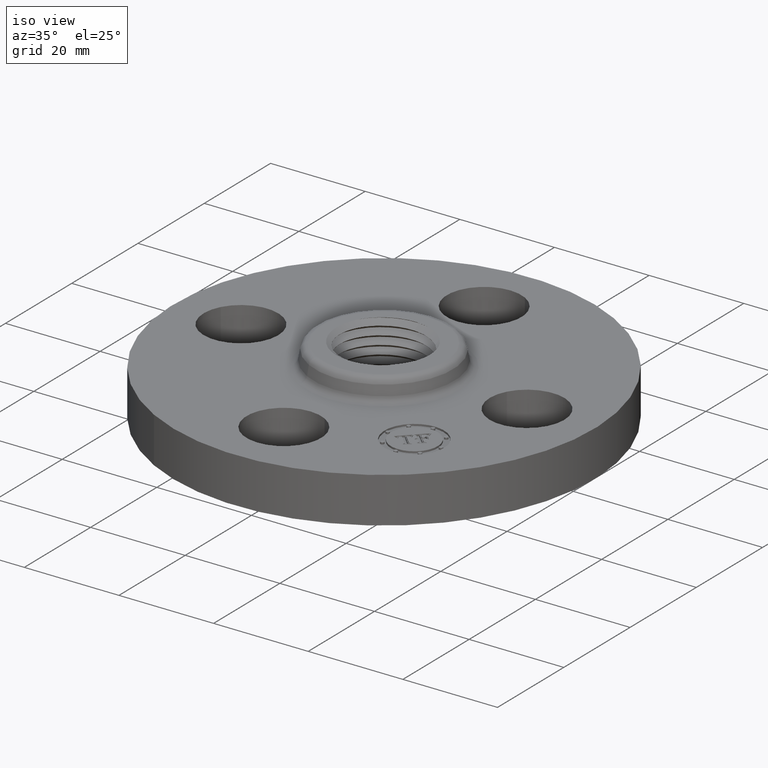
[diagram: clean part render]
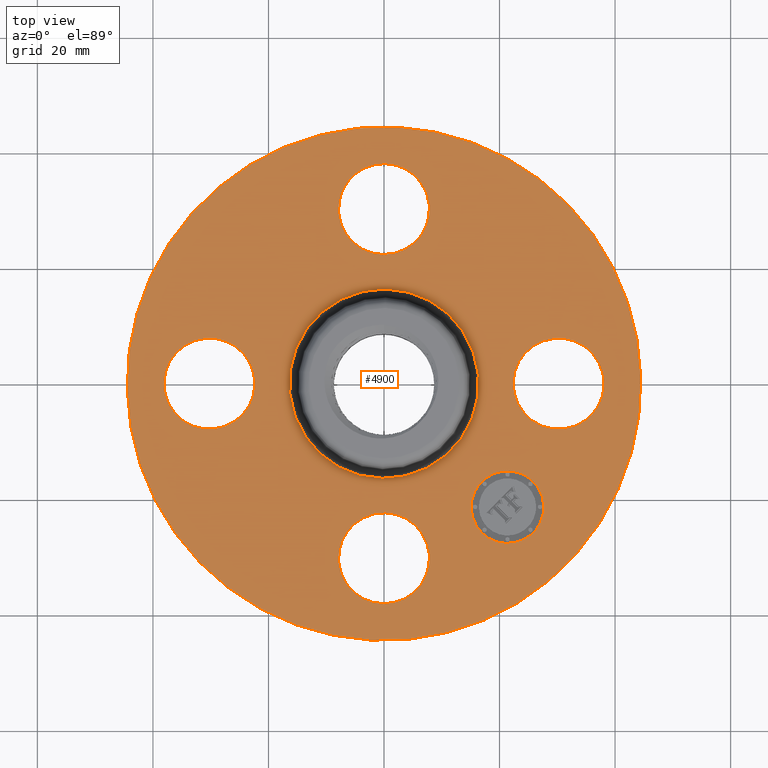
[diagram: tour spotlight — one face highlighted and labeled with its STEP entity id]
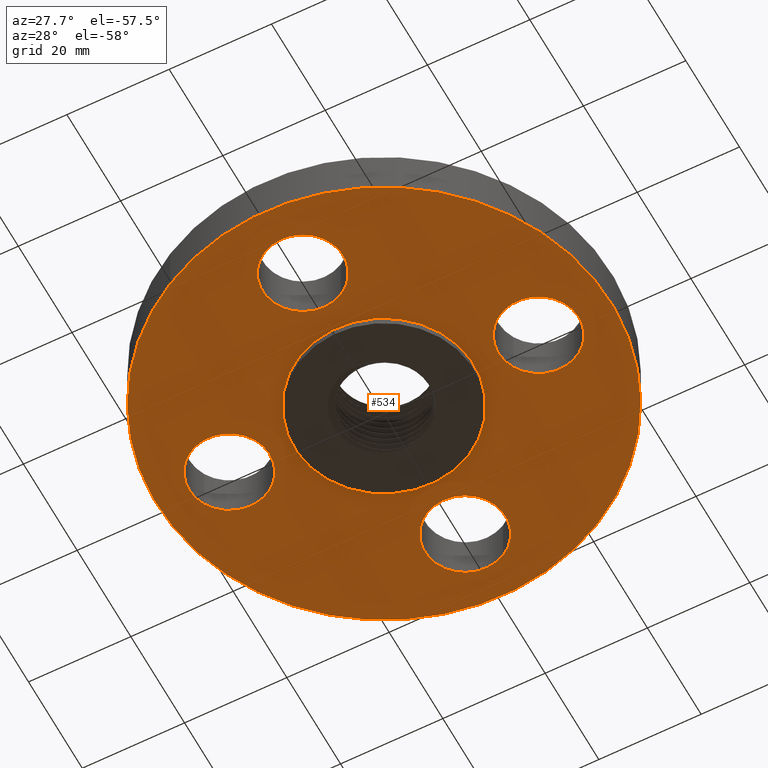
[diagram: tour spotlight — one face highlighted and labeled with its STEP entity id]
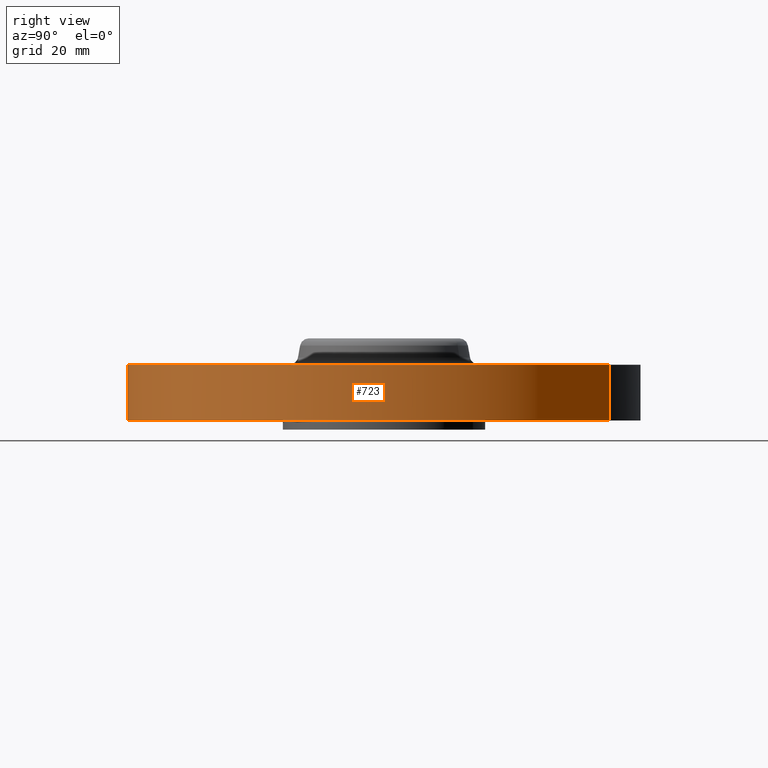
[diagram: tour spotlight — one face highlighted and labeled with its STEP entity id]
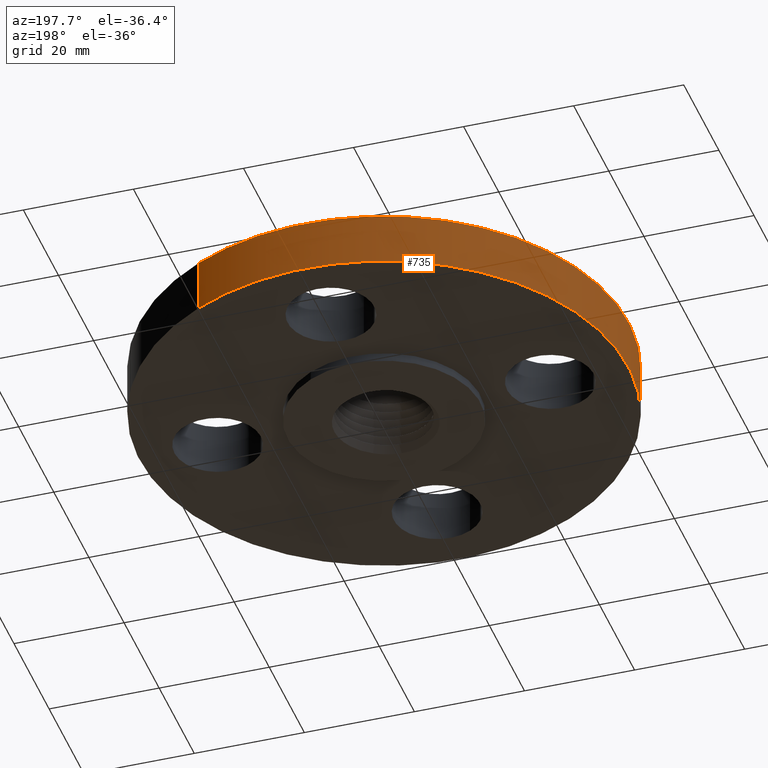
[diagram: tour spotlight — one face highlighted and labeled with its STEP entity id]
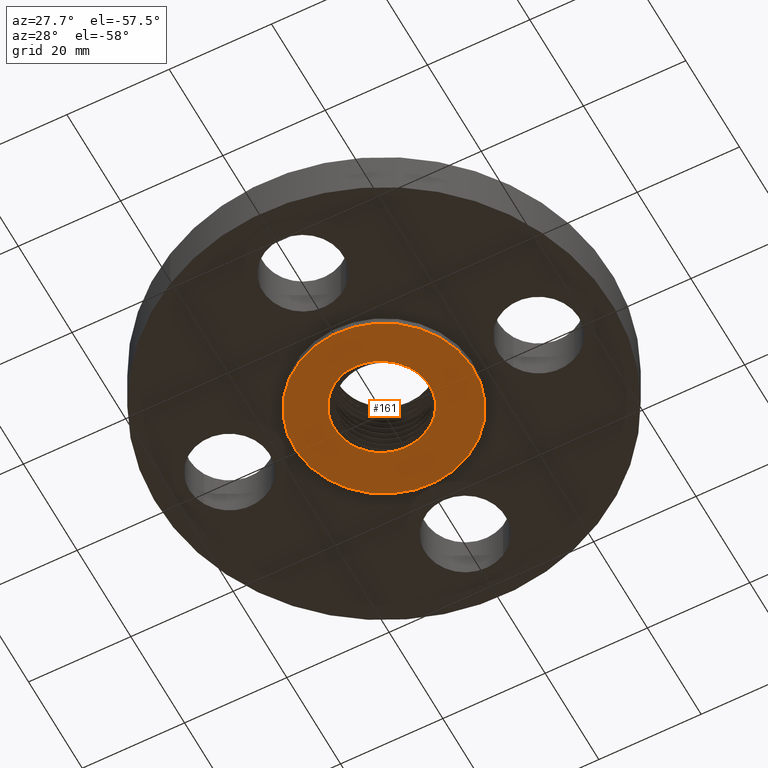
[diagram: tour spotlight — one face highlighted and labeled with its STEP entity id]
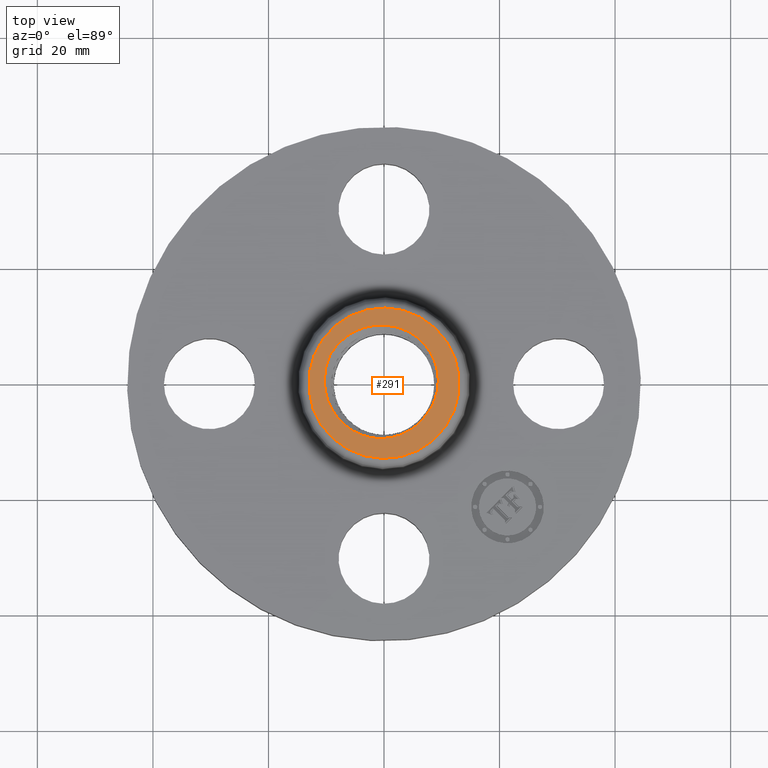
[diagram: tour spotlight — one face highlighted and labeled with its STEP entity id]
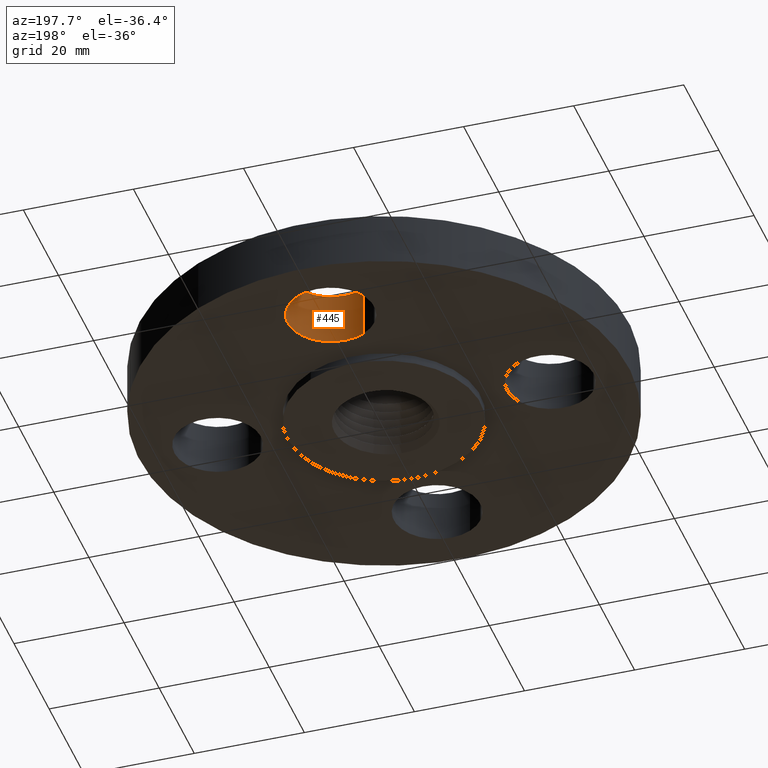
[diagram: tour spotlight — one face highlighted and labeled with its STEP entity id]
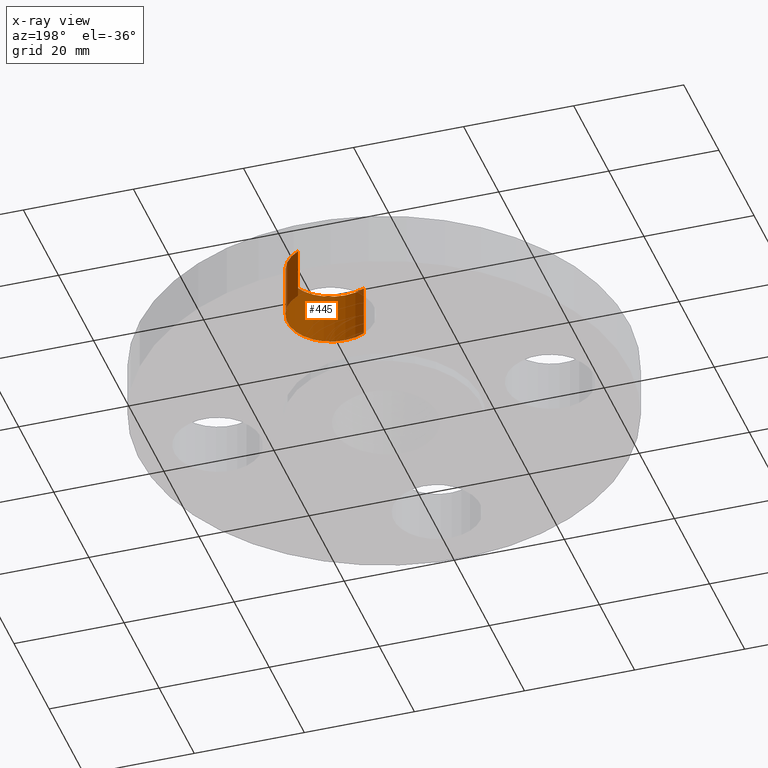
[diagram: x-ray of the same camera — body ghosted, this tour face saturated]
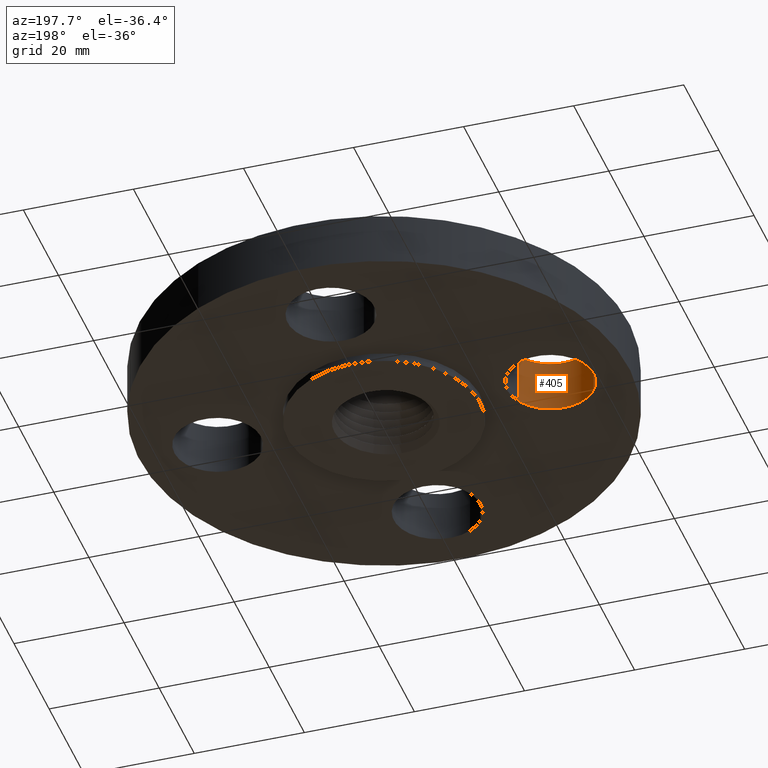
[diagram: tour spotlight — one face highlighted and labeled with its STEP entity id]
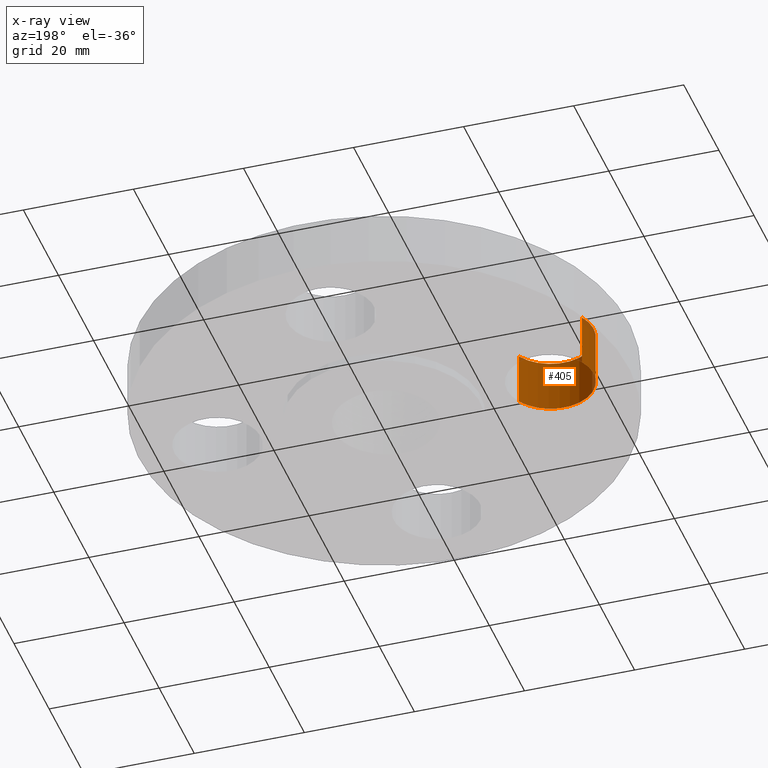
[diagram: x-ray of the same camera — body ghosted, this tour face saturated]
A machine part: a face-by-face anatomy tour. The part has 504 B-rep faces; the first image is the clean iso view, then the 8 largest visible faces are spotlighted one at a time (largest first), each with its STEP entity span.

Face 1 — top view, entity #4900. In plain terms, the highlighted planar face has unit normal (0, 0, -1).
Definition (entity closure, byte-faithful):
#322=AXIS2_PLACEMENT_3D('Circle Axis2P3D',#320,#321,$) ;
#339=AXIS2_PLACEMENT_3D('Circle Axis2P3D',#337,#338,$) ;
#379=AXIS2_PLACEMENT_3D('Circle Axis2P3D',#377,#378,$) ;
#396=AXIS2_PLACEMENT_3D('Circle Axis2P3D',#394,#395,$) ;
#436=AXIS2_PLACEMENT_3D('Circle Axis2P3D',#434,#435,$) ;
#453=AXIS2_PLACEMENT_3D('Circle Axis2P3D',#451,#452,$) ;
#657=AXIS2_PLACEMENT_3D('Circle Axis2P3D',#655,#656,$) ;
#683=AXIS2_PLACEMENT_3D('Circle Axis2P3D',#681,#682,$) ;
#707=AXIS2_PLACEMENT_3D('Circle Axis2P3D',#705,#706,$) ;
#726=AXIS2_PLACEMENT_3D('Circle Axis2P3D',#724,#725,$) ;
#757=AXIS2_PLACEMENT_3D('Circle Axis2P3D',#755,#756,$) ;
#769=AXIS2_PLACEMENT_3D('Circle Axis2P3D',#767,#768,$) ;
#4856=AXIS2_PLACEMENT_3D('Plane Axis2P3D',#4853,#4854,#4855) ;
#4884=AXIS2_PLACEMENT_3D('Circle Axis2P3D',#4882,#4883,$) ;
#4893=AXIS2_PLACEMENT_3D('Circle Axis2P3D',#4891,#4892,$) ;
#303=CARTESIAN_POINT('Vertex',(-0.148621916968,-1.46205059419,0.380000000002)) ;
#317=CARTESIAN_POINT('Vertex',(0.148621916968,-0.917949405818,0.380000000002)) ;
#320=CARTESIAN_POINT('Axis2P3D Location',(-6.70041327261E-017,-1.19,0.380000000002)) ;
#337=CARTESIAN_POINT('Axis2P3D Location',(-6.70041327261E-017,-1.19,0.380000000002)) ;
#360=CARTESIAN_POINT('Vertex',(-1.46205059419,0.148621916968,0.380000000002)) ;
#374=CARTESIAN_POINT('Vertex',(-0.917949405818,-0.148621916968,0.380000000002)) ;
#377=CARTESIAN_POINT('Axis2P3D Location',(-1.19,-1.45732969099E-016,0.380000000002)) ;
#394=CARTESIAN_POINT('Axis2P3D Location',(-1.19,-1.45732969099E-016,0.380000000002)) ;
#417=CARTESIAN_POINT('Vertex',(0.148621916968,1.46205059419,0.380000000002)) ;
#431=CARTESIAN_POINT('Vertex',(-0.148621916968,0.917949405818,0.380000000002)) ;
#434=CARTESIAN_POINT('Axis2P3D Location',(-7.87288363731E-017,1.19,0.380000000002)) ;
#451=CARTESIAN_POINT('Axis2P3D Location',(-7.87288363731E-017,1.19,0.380000000002)) ;
#655=CARTESIAN_POINT('Axis2P3D Location',(0.,0.,0.380000000002)) ;
#659=CARTESIAN_POINT('Vertex',(-0.309395343028,-0.566344376568,0.380000000002)) ;
#661=CARTESIAN_POINT('Vertex',(0.309395343028,0.566344376568,0.380000000002)) ;
#681=CARTESIAN_POINT('Axis2P3D Location',(0.,0.,0.380000000002)) ;
#702=CARTESIAN_POINT('Vertex',(0.838994692561,1.53576948331,0.380000000002)) ;
#705=CARTESIAN_POINT('Axis2P3D Location',(0.,0.,0.380000000002)) ;
#709=CARTESIAN_POINT('Vertex',(-0.838994692561,-1.53576948331,0.380000000002)) ;
#724=CARTESIAN_POINT('Axis2P3D Location',(0.,0.,0.380000000002)) ;
#745=CARTESIAN_POINT('Vertex',(1.46205059419,-0.148621916968,0.380000000002)) ;
#752=CARTESIAN_POINT('Vertex',(0.917949405818,0.148621916968,0.380000000002)) ;
#755=CARTESIAN_POINT('Axis2P3D Location',(1.19,0.,0.380000000002)) ;
#767=CARTESIAN_POINT('Axis2P3D Location',(1.19,0.,0.380000000002)) ;
#4853=CARTESIAN_POINT('Axis2P3D Location',(0.,1.75000000001,0.380000000002)) ;
#4882=CARTESIAN_POINT('Axis2P3D Location',(0.841457069615,-0.841457069615,0.380000000002)) ;
#4886=CARTESIAN_POINT('Vertex',(1.01646599796,-0.666448141271,0.380000000002)) ;
#4888=CARTESIAN_POINT('Vertex',(0.666448141271,-1.01646599796,0.380000000002)) ;
#4891=CARTESIAN_POINT('Axis2P3D Location',(0.841457069615,-0.841457069615,0.380000000002)) ;
#321=DIRECTION('Axis2P3D Direction',(0.,-0.,-0.0393700787402)) ;
#338=DIRECTION('Axis2P3D Direction',(0.,-0.,-0.0393700787402)) ;
#378=DIRECTION('Axis2P3D Direction',(-0.,0.,-0.0393700787402)) ;
#395=DIRECTION('Axis2P3D Direction',(-0.,0.,-0.0393700787402)) ;
#435=DIRECTION('Axis2P3D Direction',(0.,0.,-0.0393700787402)) ;
#452=DIRECTION('Axis2P3D Direction',(0.,0.,-0.0393700787402)) ;
#656=DIRECTION('Axis2P3D Direction',(0.,0.,-0.0393700787402)) ;
#682=DIRECTION('Axis2P3D Direction',(0.,0.,-0.0393700787402)) ;
#706=DIRECTION('Axis2P3D Direction',(0.,0.,-0.0393700787402)) ;
#725=DIRECTION('Axis2P3D Direction',(0.,0.,-0.0393700787402)) ;
#756=DIRECTION('Axis2P3D Direction',(0.,-0.,-0.0393700787402)) ;
#768=DIRECTION('Axis2P3D Direction',(0.,-0.,-0.0393700787402)) ;
#4854=DIRECTION('Axis2P3D Direction',(0.,0.,-0.0393700787402)) ;
#4855=DIRECTION('Axis2P3D XDirection',(0.0393700787402,0.,0.)) ;
#4883=DIRECTION('Axis2P3D Direction',(0.,0.,-0.0393700787402)) ;
#4892=DIRECTION('Axis2P3D Direction',(0.,0.,-0.0393700787402)) ;
#4859=ORIENTED_EDGE('',*,*,#711,.F.) ;
#4860=ORIENTED_EDGE('',*,*,#728,.F.) ;
#4863=ORIENTED_EDGE('',*,*,#771,.T.) ;
#4864=ORIENTED_EDGE('',*,*,#759,.T.) ;
#4867=ORIENTED_EDGE('',*,*,#663,.T.) ;
#4868=ORIENTED_EDGE('',*,*,#685,.T.) ;
#4871=ORIENTED_EDGE('',*,*,#324,.T.) ;
#4872=ORIENTED_EDGE('',*,*,#341,.T.) ;
#4875=ORIENTED_EDGE('',*,*,#381,.T.) ;
#4876=ORIENTED_EDGE('',*,*,#398,.T.) ;
#4879=ORIENTED_EDGE('',*,*,#438,.T.) ;
#4880=ORIENTED_EDGE('',*,*,#455,.T.) ;
#4897=ORIENTED_EDGE('',*,*,#4890,.T.) ;
#4898=ORIENTED_EDGE('',*,*,#4895,.T.) ;
#4865=FACE_BOUND('',#4862,.T.) ;
#4869=FACE_BOUND('',#4866,.T.) ;
#4873=FACE_BOUND('',#4870,.T.) ;
#4877=FACE_BOUND('',#4874,.T.) ;
#4881=FACE_BOUND('',#4878,.T.) ;
#4899=FACE_BOUND('',#4896,.T.) ;
#4900=ADVANCED_FACE('PartBody',(#4861,#4865,#4869,#4873,#4877,#4881,#4899),#4857,.F.) ;
#323=CIRCLE('generated circle',#322,0.310000000001) ;
#340=CIRCLE('generated circle',#339,0.310000000001) ;
#380=CIRCLE('generated circle',#379,0.310000000001) ;
#397=CIRCLE('generated circle',#396,0.310000000001) ;
#437=CIRCLE('generated circle',#436,0.310000000001) ;
#454=CIRCLE('generated circle',#453,0.310000000001) ;
#658=CIRCLE('generated circle',#657,0.645345977873) ;
#684=CIRCLE('generated circle',#683,0.645345977873) ;
#708=CIRCLE('generated circle',#707,1.75000000001) ;
#727=CIRCLE('generated circle',#726,1.75000000001) ;
#758=CIRCLE('generated circle',#757,0.310000000001) ;
#770=CIRCLE('generated circle',#769,0.310000000001) ;
#4885=CIRCLE('generated circle',#4884,0.247500000001) ;
#4894=CIRCLE('generated circle',#4893,0.247500000001) ;
#324=EDGE_CURVE('',#304,#318,#323,.T.) ;
#341=EDGE_CURVE('',#318,#304,#340,.T.) ;
#381=EDGE_CURVE('',#361,#375,#380,.T.) ;
#398=EDGE_CURVE('',#375,#361,#397,.T.) ;
#438=EDGE_CURVE('',#418,#432,#437,.T.) ;
#455=EDGE_CURVE('',#432,#418,#454,.T.) ;
#663=EDGE_CURVE('',#660,#662,#658,.T.) ;
#685=EDGE_CURVE('',#662,#660,#684,.T.) ;
#711=EDGE_CURVE('',#703,#710,#708,.T.) ;
#728=EDGE_CURVE('',#710,#703,#727,.T.) ;
#759=EDGE_CURVE('',#746,#753,#758,.T.) ;
#771=EDGE_CURVE('',#753,#746,#770,.T.) ;
#4890=EDGE_CURVE('',#4887,#4889,#4885,.T.) ;
#4895=EDGE_CURVE('',#4889,#4887,#4894,.T.) ;
#4858=EDGE_LOOP('',(#4859,#4860)) ;
#4862=EDGE_LOOP('',(#4863,#4864)) ;
#4866=EDGE_LOOP('',(#4867,#4868)) ;
#4870=EDGE_LOOP('',(#4871,#4872)) ;
#4874=EDGE_LOOP('',(#4875,#4876)) ;
#4878=EDGE_LOOP('',(#4879,#4880)) ;
#4896=EDGE_LOOP('',(#4897,#4898)) ;
#4861=FACE_OUTER_BOUND('',#4858,.T.) ;
#4857=PLANE('',#4856) ;
#304=VERTEX_POINT('',#303) ;
#318=VERTEX_POINT('',#317) ;
#361=VERTEX_POINT('',#360) ;
#375=VERTEX_POINT('',#374) ;
#418=VERTEX_POINT('',#417) ;
#432=VERTEX_POINT('',#431) ;
#660=VERTEX_POINT('',#659) ;
#662=VERTEX_POINT('',#661) ;
#703=VERTEX_POINT('',#702) ;
#710=VERTEX_POINT('',#709) ;
#746=VERTEX_POINT('',#745) ;
#753=VERTEX_POINT('',#752) ;
#4887=VERTEX_POINT('',#4886) ;
#4889=VERTEX_POINT('',#4888) ;

Face 2 — auxiliary view, entity #534. In plain terms, the highlighted planar face has unit normal (0, 0, -1).
Definition (entity closure, byte-faithful):
#308=AXIS2_PLACEMENT_3D('Circle Axis2P3D',#306,#307,$) ;
#334=AXIS2_PLACEMENT_3D('Circle Axis2P3D',#332,#333,$) ;
#365=AXIS2_PLACEMENT_3D('Circle Axis2P3D',#363,#364,$) ;
#391=AXIS2_PLACEMENT_3D('Circle Axis2P3D',#389,#390,$) ;
#422=AXIS2_PLACEMENT_3D('Circle Axis2P3D',#420,#421,$) ;
#448=AXIS2_PLACEMENT_3D('Circle Axis2P3D',#446,#447,$) ;
#466=AXIS2_PLACEMENT_3D('Plane Axis2P3D',#463,#464,#465) ;
#470=AXIS2_PLACEMENT_3D('Circle Axis2P3D',#468,#469,$) ;
#479=AXIS2_PLACEMENT_3D('Circle Axis2P3D',#477,#478,$) ;
#488=AXIS2_PLACEMENT_3D('Circle Axis2P3D',#486,#487,$) ;
#497=AXIS2_PLACEMENT_3D('Circle Axis2P3D',#495,#496,$) ;
#506=AXIS2_PLACEMENT_3D('Circle Axis2P3D',#504,#505,$) ;
#515=AXIS2_PLACEMENT_3D('Circle Axis2P3D',#513,#514,$) ;
#301=CARTESIAN_POINT('Vertex',(-0.148621916968,-1.46205059419,-6.99353086378E-017)) ;
#306=CARTESIAN_POINT('Axis2P3D Location',(-6.70041327261E-017,-1.19,0.)) ;
#310=CARTESIAN_POINT('Vertex',(0.148621916968,-0.917949405818,0.)) ;
#332=CARTESIAN_POINT('Axis2P3D Location',(-6.70041327261E-017,-1.19,0.)) ;
#358=CARTESIAN_POINT('Vertex',(-1.46205059419,0.148621916968,-6.99353086378E-017)) ;
#363=CARTESIAN_POINT('Axis2P3D Location',(-1.19,-1.45732969099E-016,0.)) ;
#367=CARTESIAN_POINT('Vertex',(-0.917949405818,-0.148621916968,0.)) ;
#389=CARTESIAN_POINT('Axis2P3D Location',(-1.19,-1.45732969099E-016,0.)) ;
#415=CARTESIAN_POINT('Vertex',(0.148621916968,1.46205059419,-6.99353086378E-017)) ;
#420=CARTESIAN_POINT('Axis2P3D Location',(-7.87288363731E-017,1.19,0.)) ;
#424=CARTESIAN_POINT('Vertex',(-0.148621916968,0.917949405818,0.)) ;
#446=CARTESIAN_POINT('Axis2P3D Location',(-7.87288363731E-017,1.19,0.)) ;
#463=CARTESIAN_POINT('Axis2P3D Location',(0.,0.690000000003,0.)) ;
#468=CARTESIAN_POINT('Axis2P3D Location',(0.,0.,0.)) ;
#472=CARTESIAN_POINT('Vertex',(-0.838994692561,-1.53576948331,1.39870617276E-016)) ;
#474=CARTESIAN_POINT('Vertex',(0.838994692561,1.53576948331,1.39870617276E-016)) ;
#477=CARTESIAN_POINT('Axis2P3D Location',(0.,0.,0.)) ;
#486=CARTESIAN_POINT('Axis2P3D Location',(1.19,-1.39870617276E-016,0.)) ;
#490=CARTESIAN_POINT('Vertex',(1.46205059419,-0.148621916968,0.)) ;
#492=CARTESIAN_POINT('Vertex',(0.917949405818,0.148621916968,0.)) ;
#495=CARTESIAN_POINT('Axis2P3D Location',(1.19,1.39870617276E-016,0.)) ;
#504=CARTESIAN_POINT('Axis2P3D Location',(0.,0.,0.)) ;
#508=CARTESIAN_POINT('Vertex',(0.330803621638,0.605531967707,1.04902962957E-016)) ;
#510=CARTESIAN_POINT('Vertex',(-0.330803621638,-0.605531967707,1.04902962957E-016)) ;
#513=CARTESIAN_POINT('Axis2P3D Location',(0.,0.,0.)) ;
#307=DIRECTION('Axis2P3D Direction',(0.,-0.,-0.0393700787402)) ;
#333=DIRECTION('Axis2P3D Direction',(0.,-0.,-0.0393700787402)) ;
#364=DIRECTION('Axis2P3D Direction',(-0.,0.,-0.0393700787402)) ;
#390=DIRECTION('Axis2P3D Direction',(-0.,0.,-0.0393700787402)) ;
#421=DIRECTION('Axis2P3D Direction',(0.,0.,-0.0393700787402)) ;
#447=DIRECTION('Axis2P3D Direction',(0.,0.,-0.0393700787402)) ;
#464=DIRECTION('Axis2P3D Direction',(0.,0.,-0.0393700787402)) ;
#465=DIRECTION('Axis2P3D XDirection',(0.0393700787402,0.,0.)) ;
#469=DIRECTION('Axis2P3D Direction',(0.,0.,-0.0393700787402)) ;
#478=DIRECTION('Axis2P3D Direction',(0.,0.,-0.0393700787402)) ;
#487=DIRECTION('Axis2P3D Direction',(0.,0.,-0.0393700787402)) ;
#496=DIRECTION('Axis2P3D Direction',(0.,0.,-0.0393700787402)) ;
#505=DIRECTION('Axis2P3D Direction',(0.,0.,-0.0393700787402)) ;
#514=DIRECTION('Axis2P3D Direction',(0.,0.,-0.0393700787402)) ;
#483=ORIENTED_EDGE('',*,*,#476,.T.) ;
#484=ORIENTED_EDGE('',*,*,#481,.T.) ;
#501=ORIENTED_EDGE('',*,*,#494,.F.) ;
#502=ORIENTED_EDGE('',*,*,#499,.F.) ;
#519=ORIENTED_EDGE('',*,*,#512,.F.) ;
#520=ORIENTED_EDGE('',*,*,#517,.F.) ;
#523=ORIENTED_EDGE('',*,*,#336,.F.) ;
#524=ORIENTED_EDGE('',*,*,#312,.F.) ;
#527=ORIENTED_EDGE('',*,*,#393,.F.) ;
#528=ORIENTED_EDGE('',*,*,#369,.F.) ;
#531=ORIENTED_EDGE('',*,*,#450,.F.) ;
#532=ORIENTED_EDGE('',*,*,#426,.F.) ;
#503=FACE_BOUND('',#500,.T.) ;
#521=FACE_BOUND('',#518,.T.) ;
#525=FACE_BOUND('',#522,.T.) ;
#529=FACE_BOUND('',#526,.T.) ;
#533=FACE_BOUND('',#530,.T.) ;
#534=ADVANCED_FACE('PartBody',(#485,#503,#521,#525,#529,#533),#467,.T.) ;
#309=CIRCLE('generated circle',#308,0.310000000001) ;
#335=CIRCLE('generated circle',#334,0.310000000001) ;
#366=CIRCLE('generated circle',#365,0.310000000001) ;
#392=CIRCLE('generated circle',#391,0.310000000001) ;
#423=CIRCLE('generated circle',#422,0.310000000001) ;
#449=CIRCLE('generated circle',#448,0.310000000001) ;
#471=CIRCLE('generated circle',#470,1.75000000001) ;
#480=CIRCLE('generated circle',#479,1.75000000001) ;
#489=CIRCLE('generated circle',#488,0.310000000001) ;
#498=CIRCLE('generated circle',#497,0.310000000001) ;
#507=CIRCLE('generated circle',#506,0.690000000003) ;
#516=CIRCLE('generated circle',#515,0.690000000003) ;
#312=EDGE_CURVE('',#302,#311,#309,.T.) ;
#336=EDGE_CURVE('',#311,#302,#335,.T.) ;
#369=EDGE_CURVE('',#359,#368,#366,.T.) ;
#393=EDGE_CURVE('',#368,#359,#392,.T.) ;
#426=EDGE_CURVE('',#416,#425,#423,.T.) ;
#450=EDGE_CURVE('',#425,#416,#449,.T.) ;
#476=EDGE_CURVE('',#473,#475,#471,.T.) ;
#481=EDGE_CURVE('',#475,#473,#480,.T.) ;
#494=EDGE_CURVE('',#491,#493,#489,.T.) ;
#499=EDGE_CURVE('',#493,#491,#498,.T.) ;
#512=EDGE_CURVE('',#509,#511,#507,.T.) ;
#517=EDGE_CURVE('',#511,#509,#516,.T.) ;
#482=EDGE_LOOP('',(#483,#484)) ;
#500=EDGE_LOOP('',(#501,#502)) ;
#518=EDGE_LOOP('',(#519,#520)) ;
#522=EDGE_LOOP('',(#523,#524)) ;
#526=EDGE_LOOP('',(#527,#528)) ;
#530=EDGE_LOOP('',(#531,#532)) ;
#485=FACE_OUTER_BOUND('',#482,.T.) ;
#467=PLANE('',#466) ;
#302=VERTEX_POINT('',#301) ;
#311=VERTEX_POINT('',#310) ;
#359=VERTEX_POINT('',#358) ;
#368=VERTEX_POINT('',#367) ;
#416=VERTEX_POINT('',#415) ;
#425=VERTEX_POINT('',#424) ;
#473=VERTEX_POINT('',#472) ;
#475=VERTEX_POINT('',#474) ;
#491=VERTEX_POINT('',#490) ;
#493=VERTEX_POINT('',#492) ;
#509=VERTEX_POINT('',#508) ;
#511=VERTEX_POINT('',#510) ;

Face 3 — right view, entity #723. In plain terms, the highlighted cylindrical surface (partial cylindrical patch) has radius 44.45 mm, axis along (0, 0, -1).
Definition (entity closure, byte-faithful):
#479=AXIS2_PLACEMENT_3D('Circle Axis2P3D',#477,#478,$) ;
#696=AXIS2_PLACEMENT_3D('Cylinder Axis2P3D',#693,#694,#695) ;
#707=AXIS2_PLACEMENT_3D('Circle Axis2P3D',#705,#706,$) ;
#472=CARTESIAN_POINT('Vertex',(-0.838994692561,-1.53576948331,1.39870617276E-016)) ;
#474=CARTESIAN_POINT('Vertex',(0.838994692561,1.53576948331,1.39870617276E-016)) ;
#477=CARTESIAN_POINT('Axis2P3D Location',(0.,0.,0.)) ;
#693=CARTESIAN_POINT('Axis2P3D Location',(0.,0.,0.248750000001)) ;
#698=CARTESIAN_POINT('Line Origine',(0.838994692561,1.53576948331,0.190000000001)) ;
#702=CARTESIAN_POINT('Vertex',(0.838994692561,1.53576948331,0.380000000002)) ;
#705=CARTESIAN_POINT('Axis2P3D Location',(0.,0.,0.380000000002)) ;
#709=CARTESIAN_POINT('Vertex',(-0.838994692561,-1.53576948331,0.380000000002)) ;
#712=CARTESIAN_POINT('Line Origine',(-0.838994692561,-1.53576948331,0.190000000001)) ;
#478=DIRECTION('Axis2P3D Direction',(0.,0.,-0.0393700787402)) ;
#694=DIRECTION('Axis2P3D Direction',(0.,0.,-0.0393700787402)) ;
#695=DIRECTION('Axis2P3D XDirection',(-0.0188750212049,-0.0345504945626,0.)) ;
#699=DIRECTION('Vector Direction',(0.,0.,-0.0393700787402)) ;
#706=DIRECTION('Axis2P3D Direction',(0.,0.,-0.0393700787402)) ;
#713=DIRECTION('Vector Direction',(0.,0.,-0.0393700787402)) ;
#700=VECTOR('Line Direction',#699,0.0393700787402) ;
#714=VECTOR('Line Direction',#713,0.0393700787402) ;
#718=ORIENTED_EDGE('',*,*,#481,.F.) ;
#719=ORIENTED_EDGE('',*,*,#704,.T.) ;
#720=ORIENTED_EDGE('',*,*,#711,.T.) ;
#721=ORIENTED_EDGE('',*,*,#716,.F.) ;
#723=ADVANCED_FACE('PartBody',(#722),#697,.T.) ;
#480=CIRCLE('generated circle',#479,1.75000000001) ;
#708=CIRCLE('generated circle',#707,1.75000000001) ;
#697=CYLINDRICAL_SURFACE('generated cylinder',#696,1.75000000001) ;
#481=EDGE_CURVE('',#475,#473,#480,.T.) ;
#704=EDGE_CURVE('',#475,#703,#701,.F.) ;
#711=EDGE_CURVE('',#703,#710,#708,.T.) ;
#716=EDGE_CURVE('',#473,#710,#715,.F.) ;
#717=EDGE_LOOP('',(#718,#719,#720,#721)) ;
#722=FACE_OUTER_BOUND('',#717,.T.) ;
#701=LINE('Line',#698,#700) ;
#715=LINE('Line',#712,#714) ;
#473=VERTEX_POINT('',#472) ;
#475=VERTEX_POINT('',#474) ;
#703=VERTEX_POINT('',#702) ;
#710=VERTEX_POINT('',#709) ;

Face 4 — auxiliary view, entity #735. In plain terms, the highlighted cylindrical surface (partial cylindrical patch) has radius 44.45 mm, axis along (0, 0, -1).
Definition (entity closure, byte-faithful):
#470=AXIS2_PLACEMENT_3D('Circle Axis2P3D',#468,#469,$) ;
#696=AXIS2_PLACEMENT_3D('Cylinder Axis2P3D',#693,#694,#695) ;
#726=AXIS2_PLACEMENT_3D('Circle Axis2P3D',#724,#725,$) ;
#468=CARTESIAN_POINT('Axis2P3D Location',(0.,0.,0.)) ;
#472=CARTESIAN_POINT('Vertex',(-0.838994692561,-1.53576948331,1.39870617276E-016)) ;
#474=CARTESIAN_POINT('Vertex',(0.838994692561,1.53576948331,1.39870617276E-016)) ;
#693=CARTESIAN_POINT('Axis2P3D Location',(0.,0.,0.248750000001)) ;
#698=CARTESIAN_POINT('Line Origine',(0.838994692561,1.53576948331,0.190000000001)) ;
#702=CARTESIAN_POINT('Vertex',(0.838994692561,1.53576948331,0.380000000002)) ;
#709=CARTESIAN_POINT('Vertex',(-0.838994692561,-1.53576948331,0.380000000002)) ;
#712=CARTESIAN_POINT('Line Origine',(-0.838994692561,-1.53576948331,0.190000000001)) ;
#724=CARTESIAN_POINT('Axis2P3D Location',(0.,0.,0.380000000002)) ;
#469=DIRECTION('Axis2P3D Direction',(0.,0.,-0.0393700787402)) ;
#694=DIRECTION('Axis2P3D Direction',(0.,0.,-0.0393700787402)) ;
#695=DIRECTION('Axis2P3D XDirection',(-0.0188750212049,-0.0345504945626,0.)) ;
#699=DIRECTION('Vector Direction',(0.,0.,-0.0393700787402)) ;
#713=DIRECTION('Vector Direction',(0.,0.,-0.0393700787402)) ;
#725=DIRECTION('Axis2P3D Direction',(0.,0.,-0.0393700787402)) ;
#700=VECTOR('Line Direction',#699,0.0393700787402) ;
#714=VECTOR('Line Direction',#713,0.0393700787402) ;
#730=ORIENTED_EDGE('',*,*,#476,.F.) ;
#731=ORIENTED_EDGE('',*,*,#716,.T.) ;
#732=ORIENTED_EDGE('',*,*,#728,.T.) ;
#733=ORIENTED_EDGE('',*,*,#704,.F.) ;
#735=ADVANCED_FACE('PartBody',(#734),#697,.T.) ;
#471=CIRCLE('generated circle',#470,1.75000000001) ;
#727=CIRCLE('generated circle',#726,1.75000000001) ;
#697=CYLINDRICAL_SURFACE('generated cylinder',#696,1.75000000001) ;
#476=EDGE_CURVE('',#473,#475,#471,.T.) ;
#704=EDGE_CURVE('',#475,#703,#701,.F.) ;
#716=EDGE_CURVE('',#473,#710,#715,.F.) ;
#728=EDGE_CURVE('',#710,#703,#727,.T.) ;
#729=EDGE_LOOP('',(#730,#731,#732,#733)) ;
#734=FACE_OUTER_BOUND('',#729,.T.) ;
#701=LINE('Line',#698,#700) ;
#715=LINE('Line',#712,#714) ;
#473=VERTEX_POINT('',#472) ;
#475=VERTEX_POINT('',#474) ;
#703=VERTEX_POINT('',#702) ;
#710=VERTEX_POINT('',#709) ;

Face 5 — auxiliary view, entity #161. In plain terms, the highlighted planar face has unit normal (0, 0, -1).
Definition (entity closure, byte-faithful):
#38=AXIS2_PLACEMENT_3D('Plane Axis2P3D',#35,#36,#37) ;
#42=AXIS2_PLACEMENT_3D('Circle Axis2P3D',#40,#41,$) ;
#51=AXIS2_PLACEMENT_3D('Circle Axis2P3D',#49,#50,$) ;
#149=AXIS2_PLACEMENT_3D('Circle Axis2P3D',#147,#148,$) ;
#35=CARTESIAN_POINT('Axis2P3D Location',(0.,0.,-0.0625000000003)) ;
#40=CARTESIAN_POINT('Axis2P3D Location',(0.,0.,-0.0625000000003)) ;
#44=CARTESIAN_POINT('Vertex',(0.330803621638,0.605531967707,-0.0625000000002)) ;
#46=CARTESIAN_POINT('Vertex',(-0.330803621638,-0.605531967707,-0.0625000000002)) ;
#49=CARTESIAN_POINT('Axis2P3D Location',(0.,0.,-0.0625000000003)) ;
#59=CARTESIAN_POINT('Control Point',(5.58100573531E-005,0.347045224362,-0.0625000000003)) ;
#60=CARTESIAN_POINT('Control Point',(0.0257327041205,0.345759177603,-0.0625000000003)) ;
#61=CARTESIAN_POINT('Control Point',(0.0512289600817,0.34209558014,-0.0625000000003)) ;
#62=CARTESIAN_POINT('Control Point',(0.0762461793395,0.336077672096,-0.0625000000003)) ;
#63=CARTESIAN_POINT('Control Point',(0.100492640811,0.327786022364,-0.0625000000003)) ;
#64=CARTESIAN_POINT('Control Point',(0.123702344041,0.317351392746,-0.0625000000003)) ;
#65=CARTESIAN_POINT('Vertex',(5.58100573534E-005,0.347045224362,-0.0625000000003)) ;
#67=CARTESIAN_POINT('Vertex',(0.123702376198,0.317351541861,-0.0625003284446)) ;
#71=CARTESIAN_POINT('Control Point',(-0.170495670261,0.312185847835,-0.0625000000003)) ;
#72=CARTESIAN_POINT('Control Point',(-0.138638276458,0.327621931795,-0.0625000000003)) ;
#73=CARTESIAN_POINT('Control Point',(-0.104955764127,0.339043115304,-0.0625000000003)) ;
#74=CARTESIAN_POINT('Control Point',(-0.0701025011015,0.346147032728,-0.0625000000003)) ;
#75=CARTESIAN_POINT('Control Point',(-0.0348563395441,0.348793826022,-0.0625000000003)) ;
#76=CARTESIAN_POINT('Control Point',(5.58100573534E-005,0.347045224362,-0.0625000000003)) ;
#77=CARTESIAN_POINT('Vertex',(-0.170495670261,0.312185847835,-0.0625000000003)) ;
#81=CARTESIAN_POINT('Control Point',(-0.113787819532,-0.379755316642,-0.0625000000003)) ;
#82=CARTESIAN_POINT('Control Point',(-0.152389900337,-0.366325870117,-0.0625000000003)) ;
#83=CARTESIAN_POINT('Control Point',(-0.189154468248,-0.347953367243,-0.0625000000003)) ;
#84=CARTESIAN_POINT('Control Point',(-0.223234134041,-0.3249491171,-0.0625000000003)) ;
#85=CARTESIAN_POINT('Control Point',(-0.284446777128,-0.270785479022,-0.0625000000003)) ;
#86=CARTESIAN_POINT('Control Point',(-0.32947205553,-0.203074941347,-0.0625000000003)) ;
#87=CARTESIAN_POINT('Control Point',(-0.347343203966,-0.166541454453,-0.0625000000003)) ;
#88=CARTESIAN_POINT('Control Point',(-0.372973205922,-0.0898653824757,-0.0625000000003)) ;
#89=CARTESIAN_POINT('Control Point',(-0.377778212149,-0.00962329024246,-0.0625000000003)) ;
#90=CARTESIAN_POINT('Control Point',(-0.374816154723,0.0304463521127,-0.0625000000003)) ;
#91=CARTESIAN_POINT('Control Point',(-0.358359309735,0.108579284823,-0.0625000000003)) ;
#92=CARTESIAN_POINT('Control Point',(-0.32217633123,0.179206876155,-0.0625000000003)) ;
#93=CARTESIAN_POINT('Control Point',(-0.29948382457,0.211771011316,-0.0625000000003)) ;
#94=CARTESIAN_POINT('Control Point',(-0.260917578436,0.253651968311,-0.0625000000003)) ;
#95=CARTESIAN_POINT('Control Point',(-0.215519646798,0.286904818918,-0.0625000000003)) ;
#96=CARTESIAN_POINT('Control Point',(-0.20099324258,0.296254287677,-0.0625000000003)) ;
#97=CARTESIAN_POINT('Control Point',(-0.185959452387,0.304693074224,-0.0625000000003)) ;
#98=CARTESIAN_POINT('Control Point',(-0.170495670261,0.312185847835,-0.0625000000003)) ;
#99=CARTESIAN_POINT('Vertex',(-0.113787819532,-0.379755316642,-0.0625000000003)) ;
#103=CARTESIAN_POINT('Control Point',(-0.113787819543,-0.379755316644,-0.0625000000003)) ;
#104=CARTESIAN_POINT('Control Point',(-0.0914423278916,-0.385291218496,-0.0625000000003)) ;
#105=CARTESIAN_POINT('Control Point',(-0.0687294224987,-0.38919450723,-0.0625000000003)) ;
#106=CARTESIAN_POINT('Control Point',(-0.0458071142833,-0.391428707556,-0.0625000000003)) ;
#107=CARTESIAN_POINT('Control Point',(-0.0228405745979,-0.391980341689,-0.0625000000003)) ;
#108=CARTESIAN_POINT('Control Point',(4.72122590243E-006,-0.3908608047,-0.0625000000003)) ;
#109=CARTESIAN_POINT('Vertex',(4.7212259019E-006,-0.3908608047,-0.0625000000003)) ;
#113=CARTESIAN_POINT('Control Point',(4.72122590195E-006,-0.3908608047,-0.0625000000003)) ;
#114=CARTESIAN_POINT('Control Point',(0.0350238230992,-0.38914468858,-0.0625000000003)) ;
#115=CARTESIAN_POINT('Control Point',(0.0697579547541,-0.383501791796,-0.0625000000003)) ;
#116=CARTESIAN_POINT('Control Point',(0.103627730132,-0.373969255229,-0.0625000000003)) ;
#117=CARTESIAN_POINT('Control Point',(0.139565302382,-0.3592870506,-0.0625000000003)) ;
#118=CARTESIAN_POINT('Control Point',(0.173071923869,-0.340411521493,-0.0625000000003)) ;
#119=CARTESIAN_POINT('Control Point',(0.176343889279,-0.338514488156,-0.0625000000003)) ;
#120=CARTESIAN_POINT('Control Point',(0.179590145098,-0.336578187551,-0.0625000000003)) ;
#121=CARTESIAN_POINT('Control Point',(0.182810913957,-0.334602544071,-0.0625000000003)) ;
#122=CARTESIAN_POINT('Vertex',(0.182810913957,-0.334602544071,-0.0625000000003)) ;
#126=CARTESIAN_POINT('Control Point',(0.182810913957,-0.334602544071,-0.0625000000003)) ;
#127=CARTESIAN_POINT('Control Point',(0.216979242685,-0.313643437999,-0.0625000000003)) ;
#128=CARTESIAN_POINT('Control Point',(0.248278870852,-0.288256647371,-0.0625000000003)) ;
#129=CARTESIAN_POINT('Control Point',(0.275922804553,-0.258949791635,-0.0625000000003)) ;
#130=CARTESIAN_POINT('Control Point',(0.322627318249,-0.193925118294,-0.0625000000003)) ;
#131=CARTESIAN_POINT('Control Point',(0.350467338709,-0.119456852267,-0.0625000000003)) ;
#132=CARTESIAN_POINT('Control Point',(0.359255594661,-0.0806813134438,-0.0625000000003)) ;
#133=CARTESIAN_POINT('Control Point',(0.364782138244,-0.0177362884413,-0.0625000000003)) ;
#134=CARTESIAN_POINT('Control Point',(0.356833830946,0.044230425928,-0.0625000000003)) ;
#135=CARTESIAN_POINT('Control Point',(0.351972861121,0.0671260770525,-0.0625000000003)) ;
#136=CARTESIAN_POINT('Control Point',(0.334120897568,0.126735202727,-0.0625000000003)) ;
#137=CARTESIAN_POINT('Control Point',(0.303829368565,0.181059923485,-0.0625000000003)) ;
#138=CARTESIAN_POINT('Control Point',(0.280412431815,0.212063752455,-0.0625000000003)) ;
#139=CARTESIAN_POINT('Control Point',(0.243939990092,0.248547150439,-0.0625000000003)) ;
#140=CARTESIAN_POINT('Control Point',(0.202005457357,0.277350737349,-0.0625000000003)) ;
#141=CARTESIAN_POINT('Control Point',(0.191094852258,0.284114996621,-0.0625000000003)) ;
#142=CARTESIAN_POINT('Control Point',(0.179898988252,0.29034897931,-0.0625000000003)) ;
#143=CARTESIAN_POINT('Control Point',(0.168452038901,0.296037114233,-0.0625000000003)) ;
#144=CARTESIAN_POINT('Vertex',(0.168452389376,0.296037304894,-0.0624996531212)) ;
#147=CARTESIAN_POINT('Axis2P3D Location',(0.,5.24514814784E-017,-0.0625000000003)) ;
#36=DIRECTION('Axis2P3D Direction',(0.,0.,-0.0393700787402)) ;
#37=DIRECTION('Axis2P3D XDirection',(0.0393700787402,0.,0.)) ;
#41=DIRECTION('Axis2P3D Direction',(0.,0.,-0.0393700787402)) ;
#50=DIRECTION('Axis2P3D Direction',(0.,0.,-0.0393700787402)) ;
#148=DIRECTION('Axis2P3D Direction',(0.,0.,-0.0393700787402)) ;
#55=ORIENTED_EDGE('',*,*,#48,.T.) ;
#56=ORIENTED_EDGE('',*,*,#53,.T.) ;
#153=ORIENTED_EDGE('',*,*,#69,.F.) ;
#154=ORIENTED_EDGE('',*,*,#79,.F.) ;
#155=ORIENTED_EDGE('',*,*,#101,.F.) ;
#156=ORIENTED_EDGE('',*,*,#111,.T.) ;
#157=ORIENTED_EDGE('',*,*,#124,.T.) ;
#158=ORIENTED_EDGE('',*,*,#146,.T.) ;
#159=ORIENTED_EDGE('',*,*,#151,.F.) ;
#160=FACE_BOUND('',#152,.T.) ;
#161=ADVANCED_FACE('PartBody',(#57,#160),#39,.T.) ;
#58=B_SPLINE_CURVE_WITH_KNOTS('',5,(#59,#60,#61,#62,#63,#64),.UNSPECIFIED.,.F.,.U.,(6,6),(0.,4.76067546743),.UNSPECIFIED.) ;
#70=B_SPLINE_CURVE_WITH_KNOTS('',5,(#71,#72,#73,#74,#75,#76),.UNSPECIFIED.,.F.,.U.,(6,6),(0.,6.4729563376),.UNSPECIFIED.) ;
#80=B_SPLINE_CURVE_WITH_KNOTS('',5,(#81,#82,#83,#84,#85,#86,#87,#88,#89,#90,#91,#92,#93,#94,#95,#96,#97,#98),.UNSPECIFIED.,.F.,.U.,(6,3,3,3,3,6),(0.,7.09662234751,14.1881631155,21.2736248145,28.3590650281,31.5010793169),.UNSPECIFIED.) ;
#102=B_SPLINE_CURVE_WITH_KNOTS('',5,(#103,#104,#105,#106,#107,#108),.UNSPECIFIED.,.F.,.U.,(6,6),(0.,3.99743365853),.UNSPECIFIED.) ;
#112=B_SPLINE_CURVE_WITH_KNOTS('',5,(#113,#114,#115,#116,#117,#118,#119,#120,#121),.UNSPECIFIED.,.F.,.U.,(6,3,6),(0.,6.12758694904,6.79594983274),.UNSPECIFIED.) ;
#125=B_SPLINE_CURVE_WITH_KNOTS('',5,(#126,#127,#128,#129,#130,#131,#132,#133,#134,#135,#136,#137,#138,#139,#140,#141,#142,#143),.UNSPECIFIED.,.F.,.U.,(6,3,3,3,3,6),(0.,7.09049414577,14.1857472094,18.4428149184,25.5420713392,27.9414207172),.UNSPECIFIED.) ;
#43=CIRCLE('generated circle',#42,0.690000000003) ;
#52=CIRCLE('generated circle',#51,0.690000000003) ;
#150=CIRCLE('generated circle',#149,0.340608699229) ;
#48=EDGE_CURVE('',#45,#47,#43,.T.) ;
#53=EDGE_CURVE('',#47,#45,#52,.T.) ;
#69=EDGE_CURVE('',#66,#68,#58,.T.) ;
#79=EDGE_CURVE('',#78,#66,#70,.T.) ;
#101=EDGE_CURVE('',#100,#78,#80,.T.) ;
#111=EDGE_CURVE('',#100,#110,#102,.T.) ;
#124=EDGE_CURVE('',#110,#123,#112,.T.) ;
#146=EDGE_CURVE('',#123,#145,#125,.T.) ;
#151=EDGE_CURVE('',#68,#145,#150,.T.) ;
#54=EDGE_LOOP('',(#55,#56)) ;
#152=EDGE_LOOP('',(#153,#154,#155,#156,#157,#158,#159)) ;
#57=FACE_OUTER_BOUND('',#54,.T.) ;
#39=PLANE('',#38) ;
#45=VERTEX_POINT('',#44) ;
#47=VERTEX_POINT('',#46) ;
#66=VERTEX_POINT('',#65) ;
#68=VERTEX_POINT('',#67) ;
#78=VERTEX_POINT('',#77) ;
#100=VERTEX_POINT('',#99) ;
#110=VERTEX_POINT('',#109) ;
#123=VERTEX_POINT('',#122) ;
#145=VERTEX_POINT('',#144) ;

Face 6 — top view, entity #291. In plain terms, the highlighted planar face has unit normal (0, 0, -1).
Definition (entity closure, byte-faithful):
#165=AXIS2_PLACEMENT_3D('Plane Axis2P3D',#162,#163,#164) ;
#169=AXIS2_PLACEMENT_3D('Circle Axis2P3D',#167,#168,$) ;
#178=AXIS2_PLACEMENT_3D('Circle Axis2P3D',#176,#177,$) ;
#187=AXIS2_PLACEMENT_3D('Circle Axis2P3D',#185,#186,$) ;
#162=CARTESIAN_POINT('Axis2P3D Location',(0.,0.512915165604,0.560000000002)) ;
#167=CARTESIAN_POINT('Axis2P3D Location',(0.,0.,0.560000000002)) ;
#171=CARTESIAN_POINT('Vertex',(0.245904629528,0.450125405063,0.560000000002)) ;
#173=CARTESIAN_POINT('Vertex',(-0.245904629528,-0.450125405063,0.560000000002)) ;
#176=CARTESIAN_POINT('Axis2P3D Location',(0.,0.,0.560000000002)) ;
#185=CARTESIAN_POINT('Axis2P3D Location',(1.39870617276E-016,-6.99353086378E-017,0.560000000002)) ;
#189=CARTESIAN_POINT('Vertex',(0.303226627845,-0.194159837926,0.559999835994)) ;
#191=CARTESIAN_POINT('Vertex',(0.271763727786,-0.236196764155,0.560000042171)) ;
#195=CARTESIAN_POINT('Control Point',(0.175885699981,-0.321954118521,0.560000000002)) ;
#196=CARTESIAN_POINT('Control Point',(0.19802082674,-0.30831720628,0.560000000002)) ;
#197=CARTESIAN_POINT('Control Point',(0.218891326876,-0.292750702098,0.560000000002)) ;
#198=CARTESIAN_POINT('Control Point',(0.238265963886,-0.275407533453,0.560000000002)) ;
#199=CARTESIAN_POINT('Control Point',(0.255943458128,-0.256481971031,0.560000000002)) ;
#200=CARTESIAN_POINT('Control Point',(0.271763650599,-0.236196713622,0.560000000002)) ;
#201=CARTESIAN_POINT('Vertex',(0.175885699981,-0.321954118521,0.560000000002)) ;
#205=CARTESIAN_POINT('Control Point',(1.07858490919E-006,-0.376440628624,0.560000000002)) ;
#206=CARTESIAN_POINT('Control Point',(0.0374170236878,-0.374537085958,0.560000000002)) ;
#207=CARTESIAN_POINT('Control Point',(0.0744717144438,-0.367979227751,0.560000000002)) ;
#208=CARTESIAN_POINT('Control Point',(0.110404096748,-0.356822976376,0.560000000002)) ;
#209=CARTESIAN_POINT('Control Point',(0.144422427428,-0.341337874097,0.560000000002)) ;
#210=CARTESIAN_POINT('Control Point',(0.175885699981,-0.321954118521,0.560000000002)) ;
#211=CARTESIAN_POINT('Vertex',(1.07858490924E-006,-0.376440628624,0.560000000002)) ;
#215=CARTESIAN_POINT('Control Point',(-0.367122979076,0.195408536954,0.560000000002)) ;
#216=CARTESIAN_POINT('Control Point',(-0.385067266451,0.157598337925,0.560000000002)) ;
#217=CARTESIAN_POINT('Control Point',(-0.398200346441,0.117634290394,0.560000000002)) ;
#218=CARTESIAN_POINT('Control Point',(-0.406160626117,0.0763167914819,0.560000000002)) ;
#219=CARTESIAN_POINT('Control Point',(-0.410882937838,0.00116508335493,0.560000000002)) ;
#220=CARTESIAN_POINT('Control Point',(-0.398567287509,-0.0725302166834,0.560000000002)) ;
#221=CARTESIAN_POINT('Control Point',(-0.389768816251,-0.104527306337,0.560000000002)) ;
#222=CARTESIAN_POINT('Control Point',(-0.362792366584,-0.173807705877,0.560000000002)) ;
#223=CARTESIAN_POINT('Control Point',(-0.320799858986,-0.234908148156,0.560000000002)) ;
#224=CARTESIAN_POINT('Control Point',(-0.29326964535,-0.265531519329,0.560000000002)) ;
#225=CARTESIAN_POINT('Control Point',(-0.231101422725,-0.318774116191,0.560000000002)) ;
#226=CARTESIAN_POINT('Control Point',(-0.157832768184,-0.354079326118,0.560000000002)) ;
#227=CARTESIAN_POINT('Control Point',(-0.119190585042,-0.366768457603,0.560000000002)) ;
#228=CARTESIAN_POINT('Control Point',(-0.0715748224748,-0.375684362453,0.560000000002)) ;
#229=CARTESIAN_POINT('Control Point',(-0.0237400784963,-0.377023229619,0.560000000002)) ;
#230=CARTESIAN_POINT('Control Point',(-0.0158093017482,-0.37703682506,0.560000000002)) ;
#231=CARTESIAN_POINT('Control Point',(-0.00789606548978,-0.376842397196,0.560000000002)) ;
#232=CARTESIAN_POINT('Control Point',(1.07858490923E-006,-0.376440628624,0.560000000002)) ;
#233=CARTESIAN_POINT('Vertex',(-0.367122979076,0.195408536489,0.560000000002)) ;
#237=CARTESIAN_POINT('Control Point',(-0.367122979076,0.195408536489,0.560000000002)) ;
#238=CARTESIAN_POINT('Control Point',(-0.344873936006,0.233315247449,0.560000000002)) ;
#239=CARTESIAN_POINT('Control Point',(-0.317667634603,0.268186952417,0.560000000002)) ;
#240=CARTESIAN_POINT('Control Point',(-0.286028978394,0.299152432928,0.560000000002)) ;
#241=CARTESIAN_POINT('Control Point',(-0.247406671459,0.327941769228,0.560000000002)) ;
#242=CARTESIAN_POINT('Control Point',(-0.205509172837,0.350568784598,0.560000000002)) ;
#243=CARTESIAN_POINT('Control Point',(-0.20187919622,0.352470422668,0.560000000002)) ;
#244=CARTESIAN_POINT('Control Point',(-0.198227529103,0.354325080533,0.560000000002)) ;
#245=CARTESIAN_POINT('Control Point',(-0.194553964888,0.356132912841,0.560000000002)) ;
#246=CARTESIAN_POINT('Vertex',(-0.194553964888,0.356132912841,0.560000000002)) ;
#250=CARTESIAN_POINT('Control Point',(-0.194553964888,0.356132912841,0.560000000002)) ;
#251=CARTESIAN_POINT('Control Point',(-0.161889370191,0.372207794339,0.560000000002)) ;
#252=CARTESIAN_POINT('Control Point',(-0.127493504025,0.384580459449,0.560000000002)) ;
#253=CARTESIAN_POINT('Control Point',(-0.0919095848649,0.39299069659,0.560000000002)) ;
#254=CARTESIAN_POINT('Control Point',(-0.0518247955354,0.397770771605,0.560000000002)) ;
#255=CARTESIAN_POINT('Control Point',(-0.0118151204459,0.397515379438,0.560000000002)) ;
#256=CARTESIAN_POINT('Control Point',(-0.00787243715067,0.39744128483,0.560000000002)) ;
#257=CARTESIAN_POINT('Control Point',(-0.00393313425167,0.397318337347,0.560000000002)) ;
#258=CARTESIAN_POINT('Control Point',(3.02082424885E-006,0.397146576951,0.560000000002)) ;
#259=CARTESIAN_POINT('Vertex',(3.02082424884E-006,0.397146576951,0.560000000002)) ;
#263=CARTESIAN_POINT('Control Point',(3.02082424886E-006,0.397146576951,0.560000000002)) ;
#264=CARTESIAN_POINT('Control Point',(0.0408746274394,0.395363079458,0.560000000002)) ;
#265=CARTESIAN_POINT('Control Point',(0.0814067828066,0.388316588761,0.560000000002)) ;
#266=CARTESIAN_POINT('Control Point',(0.120684601357,0.376063294539,0.560000000002)) ;
#267=CARTESIAN_POINT('Control Point',(0.194948859953,0.34174798664,0.560000000002)) ;
#268=CARTESIAN_POINT('Control Point',(0.257571555579,0.289840070374,0.560000000002)) ;
#269=CARTESIAN_POINT('Control Point',(0.285216409502,0.259984362782,0.560000000002)) ;
#270=CARTESIAN_POINT('Control Point',(0.322544683286,0.207126670183,0.560000000002)) ;
#271=CARTESIAN_POINT('Control Point',(0.347780472739,0.148238101709,0.560000000002)) ;
#272=CARTESIAN_POINT('Control Point',(0.355452372481,0.125490545611,0.560000000002)) ;
#273=CARTESIAN_POINT('Control Point',(0.370970686249,0.0635720932035,0.560000000002)) ;
#274=CARTESIAN_POINT('Control Point',(0.373112095065,-0.000261042554677,0.560000000002)) ;
#275=CARTESIAN_POINT('Control Point',(0.369090753359,-0.0399700273721,0.560000000002)) ;
#276=CARTESIAN_POINT('Control Point',(0.35557196041,-0.096302647575,0.560000000002)) ;
#277=CARTESIAN_POINT('Control Point',(0.331664751131,-0.148317306175,0.560000000002)) ;
#278=CARTESIAN_POINT('Control Point',(0.323119650246,-0.164219418615,0.560000000002)) ;
#279=CARTESIAN_POINT('Control Point',(0.313621656314,-0.179525001354,0.560000000002)) ;
#280=CARTESIAN_POINT('Control Point',(0.303226419277,-0.194159710392,0.560000000002)) ;
#163=DIRECTION('Axis2P3D Direction',(0.,0.,-0.0393700787402)) ;
#164=DIRECTION('Axis2P3D XDirection',(0.0393700787402,0.,0.)) ;
#168=DIRECTION('Axis2P3D Direction',(0.,0.,-0.0393700787402)) ;
#177=DIRECTION('Axis2P3D Direction',(0.,0.,-0.0393700787402)) ;
#186=DIRECTION('Axis2P3D Direction',(0.,0.,-0.0393700787402)) ;
#182=ORIENTED_EDGE('',*,*,#175,.F.) ;
#183=ORIENTED_EDGE('',*,*,#180,.F.) ;
#283=ORIENTED_EDGE('',*,*,#193,.T.) ;
#284=ORIENTED_EDGE('',*,*,#203,.F.) ;
#285=ORIENTED_EDGE('',*,*,#213,.F.) ;
#286=ORIENTED_EDGE('',*,*,#235,.F.) ;
#287=ORIENTED_EDGE('',*,*,#248,.T.) ;
#288=ORIENTED_EDGE('',*,*,#261,.T.) ;
#289=ORIENTED_EDGE('',*,*,#281,.T.) ;
#290=FACE_BOUND('',#282,.T.) ;
#291=ADVANCED_FACE('PartBody',(#184,#290),#166,.F.) ;
#194=B_SPLINE_CURVE_WITH_KNOTS('',5,(#195,#196,#197,#198,#199,#200),.UNSPECIFIED.,.F.,.U.,(6,6),(0.,4.8163396859),.UNSPECIFIED.) ;
#204=B_SPLINE_CURVE_WITH_KNOTS('',5,(#205,#206,#207,#208,#209,#210),.UNSPECIFIED.,.F.,.U.,(6,6),(0.,6.84603300057),.UNSPECIFIED.) ;
#214=B_SPLINE_CURVE_WITH_KNOTS('',5,(#215,#216,#217,#218,#219,#220,#221,#222,#223,#224,#225,#226,#227,#228,#229,#230,#231,#232),.UNSPECIFIED.,.F.,.U.,(6,3,3,3,3,6),(0.,7.2803448022,13.1015445655,20.3778582999,27.6564200368,29.1013684084),.UNSPECIFIED.) ;
#236=B_SPLINE_CURVE_WITH_KNOTS('',5,(#237,#238,#239,#240,#241,#242,#243,#244,#245),.UNSPECIFIED.,.F.,.U.,(6,3,6),(0.,7.64552688673,8.3654118569),.UNSPECIFIED.) ;
#249=B_SPLINE_CURVE_WITH_KNOTS('',5,(#250,#251,#252,#253,#254,#255,#256,#257,#258),.UNSPECIFIED.,.F.,.U.,(6,3,6),(0.,6.40107247057,7.10090788238),.UNSPECIFIED.) ;
#262=B_SPLINE_CURVE_WITH_KNOTS('',5,(#263,#264,#265,#266,#267,#268,#269,#270,#271,#272,#273,#274,#275,#276,#277,#278,#279,#280),.UNSPECIFIED.,.F.,.U.,(6,3,3,3,3,6),(0.,7.26683707528,14.5357873622,18.8954227482,26.1617475528,29.5129788841),.UNSPECIFIED.) ;
#170=CIRCLE('generated circle',#169,0.512915165604) ;
#179=CIRCLE('generated circle',#178,0.512915165604) ;
#188=CIRCLE('generated circle',#187,0.360061708862) ;
#175=EDGE_CURVE('',#172,#174,#170,.T.) ;
#180=EDGE_CURVE('',#174,#172,#179,.T.) ;
#193=EDGE_CURVE('',#190,#192,#188,.T.) ;
#203=EDGE_CURVE('',#202,#192,#194,.T.) ;
#213=EDGE_CURVE('',#212,#202,#204,.T.) ;
#235=EDGE_CURVE('',#234,#212,#214,.T.) ;
#248=EDGE_CURVE('',#234,#247,#236,.T.) ;
#261=EDGE_CURVE('',#247,#260,#249,.T.) ;
#281=EDGE_CURVE('',#260,#190,#262,.T.) ;
#181=EDGE_LOOP('',(#182,#183)) ;
#282=EDGE_LOOP('',(#283,#284,#285,#286,#287,#288,#289)) ;
#184=FACE_OUTER_BOUND('',#181,.T.) ;
#166=PLANE('',#165) ;
#172=VERTEX_POINT('',#171) ;
#174=VERTEX_POINT('',#173) ;
#190=VERTEX_POINT('',#189) ;
#192=VERTEX_POINT('',#191) ;
#202=VERTEX_POINT('',#201) ;
#212=VERTEX_POINT('',#211) ;
#234=VERTEX_POINT('',#233) ;
#247=VERTEX_POINT('',#246) ;
#260=VERTEX_POINT('',#259) ;

Face 7 — auxiliary view, entity #445. An x-ray twin of the same camera follows (body ghosted, this face saturated) — the face is partly hidden behind the body. In plain terms, the highlighted cylindrical surface (partial cylindrical patch) has radius 7.874 mm, axis along (0, 0, -1).
Definition (entity closure, byte-faithful):
#409=AXIS2_PLACEMENT_3D('Cylinder Axis2P3D',#406,#407,#408) ;
#422=AXIS2_PLACEMENT_3D('Circle Axis2P3D',#420,#421,$) ;
#436=AXIS2_PLACEMENT_3D('Circle Axis2P3D',#434,#435,$) ;
#406=CARTESIAN_POINT('Axis2P3D Location',(-7.87288363731E-017,1.19,0.376062992128)) ;
#411=CARTESIAN_POINT('Line Origine',(0.148621916968,1.46205059419,0.190000000001)) ;
#415=CARTESIAN_POINT('Vertex',(0.148621916968,1.46205059419,-6.99353086378E-017)) ;
#417=CARTESIAN_POINT('Vertex',(0.148621916968,1.46205059419,0.380000000002)) ;
#420=CARTESIAN_POINT('Axis2P3D Location',(-7.87288363731E-017,1.19,0.)) ;
#424=CARTESIAN_POINT('Vertex',(-0.148621916968,0.917949405818,0.)) ;
#427=CARTESIAN_POINT('Line Origine',(-0.148621916968,0.917949405818,0.190000000001)) ;
#431=CARTESIAN_POINT('Vertex',(-0.148621916968,0.917949405818,0.380000000002)) ;
#434=CARTESIAN_POINT('Axis2P3D Location',(-7.87288363731E-017,1.19,0.380000000002)) ;
#407=DIRECTION('Axis2P3D Direction',(0.,0.,-0.0393700787402)) ;
#408=DIRECTION('Axis2P3D XDirection',(-0.0188750212049,-0.0345504945626,-0.)) ;
#412=DIRECTION('Vector Direction',(0.,0.,-0.0393700787402)) ;
#421=DIRECTION('Axis2P3D Direction',(0.,0.,-0.0393700787402)) ;
#428=DIRECTION('Vector Direction',(0.,0.,-0.0393700787402)) ;
#435=DIRECTION('Axis2P3D Direction',(0.,0.,-0.0393700787402)) ;
#413=VECTOR('Line Direction',#412,0.0393700787402) ;
#429=VECTOR('Line Direction',#428,0.0393700787402) ;
#440=ORIENTED_EDGE('',*,*,#419,.F.) ;
#441=ORIENTED_EDGE('',*,*,#426,.T.) ;
#442=ORIENTED_EDGE('',*,*,#433,.T.) ;
#443=ORIENTED_EDGE('',*,*,#438,.F.) ;
#445=ADVANCED_FACE('PartBody',(#444),#410,.F.) ;
#423=CIRCLE('generated circle',#422,0.310000000001) ;
#437=CIRCLE('generated circle',#436,0.310000000001) ;
#410=CYLINDRICAL_SURFACE('generated cylinder',#409,0.310000000001) ;
#419=EDGE_CURVE('',#416,#418,#414,.F.) ;
#426=EDGE_CURVE('',#416,#425,#423,.T.) ;
#433=EDGE_CURVE('',#425,#432,#430,.F.) ;
#438=EDGE_CURVE('',#418,#432,#437,.T.) ;
#439=EDGE_LOOP('',(#440,#441,#442,#443)) ;
#444=FACE_OUTER_BOUND('',#439,.T.) ;
#414=LINE('Line',#411,#413) ;
#430=LINE('Line',#427,#429) ;
#416=VERTEX_POINT('',#415) ;
#418=VERTEX_POINT('',#417) ;
#425=VERTEX_POINT('',#424) ;
#432=VERTEX_POINT('',#431) ;

Face 8 — auxiliary view, entity #405. An x-ray twin of the same camera follows (body ghosted, this face saturated) — the face is partly hidden behind the body. In plain terms, the highlighted cylindrical surface (partial cylindrical patch) has radius 7.874 mm, axis along (-0, 0, -1).
Definition (entity closure, byte-faithful):
#352=AXIS2_PLACEMENT_3D('Cylinder Axis2P3D',#349,#350,#351) ;
#391=AXIS2_PLACEMENT_3D('Circle Axis2P3D',#389,#390,$) ;
#396=AXIS2_PLACEMENT_3D('Circle Axis2P3D',#394,#395,$) ;
#349=CARTESIAN_POINT('Axis2P3D Location',(-1.19,-1.45732969099E-016,0.376062992128)) ;
#354=CARTESIAN_POINT('Line Origine',(-1.46205059419,0.148621916968,0.190000000001)) ;
#358=CARTESIAN_POINT('Vertex',(-1.46205059419,0.148621916968,-6.99353086378E-017)) ;
#360=CARTESIAN_POINT('Vertex',(-1.46205059419,0.148621916968,0.380000000002)) ;
#367=CARTESIAN_POINT('Vertex',(-0.917949405818,-0.148621916968,0.)) ;
#370=CARTESIAN_POINT('Line Origine',(-0.917949405818,-0.148621916968,0.190000000001)) ;
#374=CARTESIAN_POINT('Vertex',(-0.917949405818,-0.148621916968,0.380000000002)) ;
#389=CARTESIAN_POINT('Axis2P3D Location',(-1.19,-1.45732969099E-016,0.)) ;
#394=CARTESIAN_POINT('Axis2P3D Location',(-1.19,-1.45732969099E-016,0.380000000002)) ;
#350=DIRECTION('Axis2P3D Direction',(-0.,0.,-0.0393700787402)) ;
#351=DIRECTION('Axis2P3D XDirection',(0.0345504945626,-0.0188750212049,-0.)) ;
#355=DIRECTION('Vector Direction',(0.,0.,-0.0393700787402)) ;
#371=DIRECTION('Vector Direction',(0.,0.,-0.0393700787402)) ;
#390=DIRECTION('Axis2P3D Direction',(-0.,0.,-0.0393700787402)) ;
#395=DIRECTION('Axis2P3D Direction',(-0.,0.,-0.0393700787402)) ;
#356=VECTOR('Line Direction',#355,0.0393700787402) ;
#372=VECTOR('Line Direction',#371,0.0393700787402) ;
#400=ORIENTED_EDGE('',*,*,#376,.F.) ;
#401=ORIENTED_EDGE('',*,*,#393,.T.) ;
#402=ORIENTED_EDGE('',*,*,#362,.T.) ;
#403=ORIENTED_EDGE('',*,*,#398,.F.) ;
#405=ADVANCED_FACE('PartBody',(#404),#353,.F.) ;
#392=CIRCLE('generated circle',#391,0.310000000001) ;
#397=CIRCLE('generated circle',#396,0.310000000001) ;
#353=CYLINDRICAL_SURFACE('generated cylinder',#352,0.310000000001) ;
#362=EDGE_CURVE('',#359,#361,#357,.F.) ;
#376=EDGE_CURVE('',#368,#375,#373,.F.) ;
#393=EDGE_CURVE('',#368,#359,#392,.T.) ;
#398=EDGE_CURVE('',#375,#361,#397,.T.) ;
#399=EDGE_LOOP('',(#400,#401,#402,#403)) ;
#404=FACE_OUTER_BOUND('',#399,.T.) ;
#357=LINE('Line',#354,#356) ;
#373=LINE('Line',#370,#372) ;
#359=VERTEX_POINT('',#358) ;
#361=VERTEX_POINT('',#360) ;
#368=VERTEX_POINT('',#367) ;
#375=VERTEX_POINT('',#374) ;